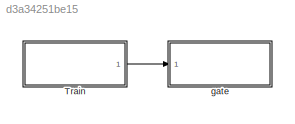
MODEL slx_d3a34251be15
KIND model
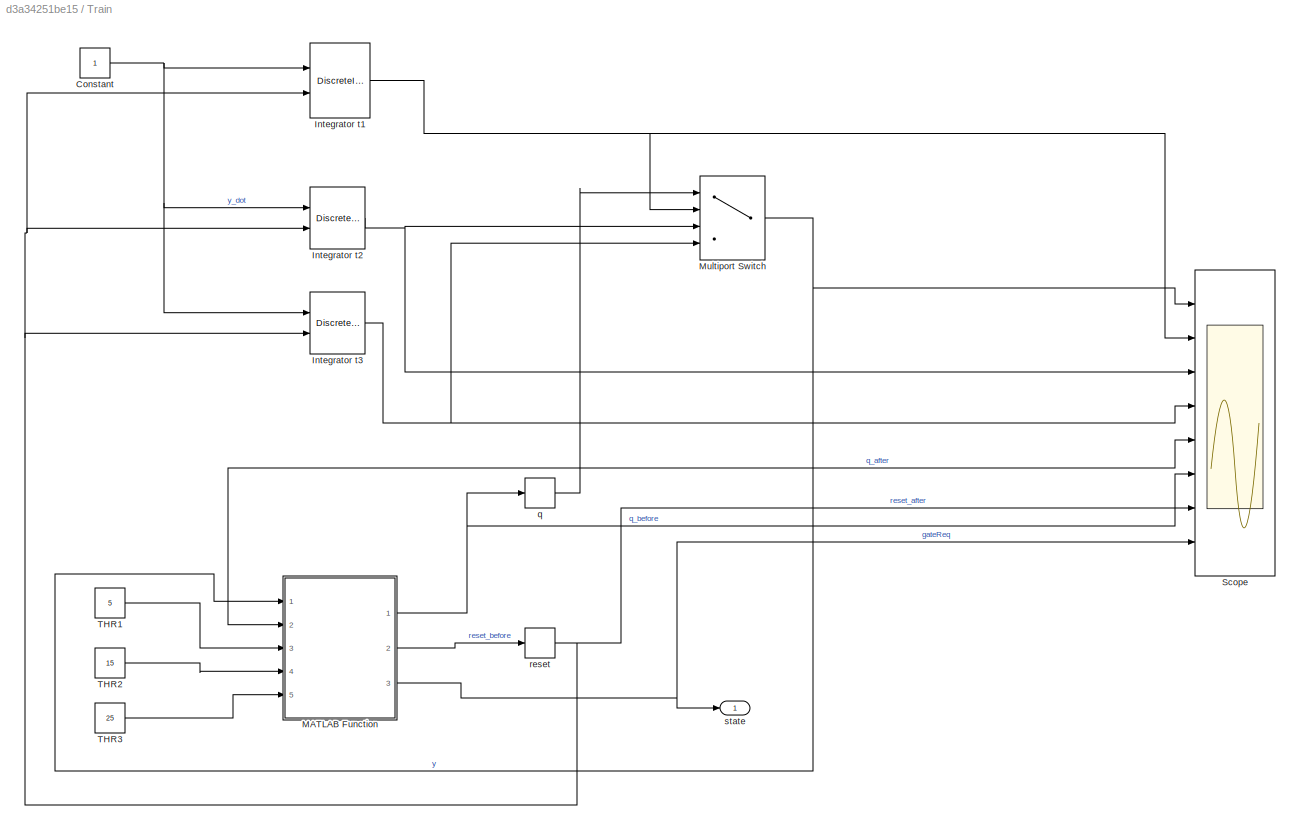
BLOCK [SubSystem] Train
  Ports = [0, 1]
  RequestExecContextInheritance = off
BLOCK [Constant] Train/Constant
BLOCK [DiscreteIntegrator] Train/Integrator t1
  ExternalReset = either
  InitialConditionSetting = State (most efficient)
  Ports = [2, 1]
  SampleTime = -1
BLOCK [DiscreteIntegrator] Train/Integrator t2
  ExternalReset = either
  InitialCondition = 5
  InitialConditionSetting = State (most efficient)
  Ports = [2, 1]
  SampleTime = -1
BLOCK [DiscreteIntegrator] Train/Integrator t3
  ExternalReset = either
  InitialCondition = 15
  InitialConditionSetting = State (most efficient)
  Ports = [2, 1]
  SampleTime = -1
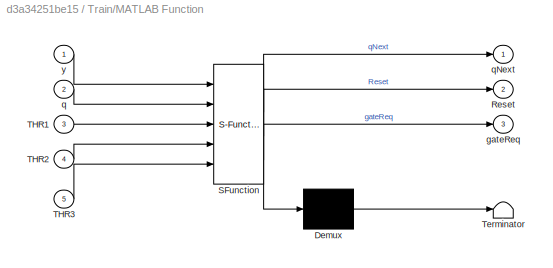
BLOCK [SubSystem] Train/MATLAB Function
  ErrorFcn = Stateflow.Translate.translate
  PermitHierarchicalResolution = ExplicitOnly
  Ports = [5, 3]
  Priority = 1
  RequestExecContextInheritance = off
  SFBlockType = MATLAB Function
  TreatAsAtomicUnit = on
BLOCK [Demux] Train/MATLAB Function/ Demux 
  Outputs = 1
  Ports = [1, 1]
BLOCK [S-Function] Train/MATLAB Function/ SFunction 
  EnableBusSupport = on
  FunctionName = sf_sfun
  PortCounts = [5 4]
  Ports = [5, 4]
  Tag = Stateflow S-Function trainGate 2
BLOCK [Terminator] Train/MATLAB Function/ Terminator 
BLOCK [Outport] Train/MATLAB Function/Reset
  IconDisplay = Port number
  Port = 2
BLOCK [Inport] Train/MATLAB Function/THR1
  IconDisplay = Port number
  Port = 3
BLOCK [Inport] Train/MATLAB Function/THR2
  IconDisplay = Port number
  Port = 4
BLOCK [Inport] Train/MATLAB Function/THR3
  IconDisplay = Port number
  Port = 5
BLOCK [Outport] Train/MATLAB Function/gateReq
  IconDisplay = Port number
  Port = 3
BLOCK [Inport] Train/MATLAB Function/q
  IconDisplay = Port number
  Port = 2
BLOCK [Outport] Train/MATLAB Function/qNext
  IconDisplay = Port number
BLOCK [Inport] Train/MATLAB Function/y
  IconDisplay = Port number
BLOCK [MultiPortSwitch] Train/Multiport Switch
  InputSameDT = off
  Ports = [4, 1]
  SaturateOnIntegerOverflow = off
BLOCK [Scope] Train/Scope
  Floating = off
  LimitDataPoints = off
  NumInputPorts = 8
  Ports = [8]
  ShowLegends = on
  TickLabels = on
  YMax = 40~20~20~30~3~3~1~1
  YMin = 0~0~0~10~1~1~0~-1
  ZoomMode = xonly
BLOCK [Constant] Train/THR1
  Value = 5
BLOCK [Constant] Train/THR2
  Value = 15
BLOCK [Constant] Train/THR3
  Value = 25
BLOCK [Memory] Train/q
  LinearizeMemory = on
  X0 = 1
BLOCK [Memory] Train/reset
  LinearizeMemory = on
  X0 = 1
BLOCK [Outport] Train/state
  IconDisplay = Port number
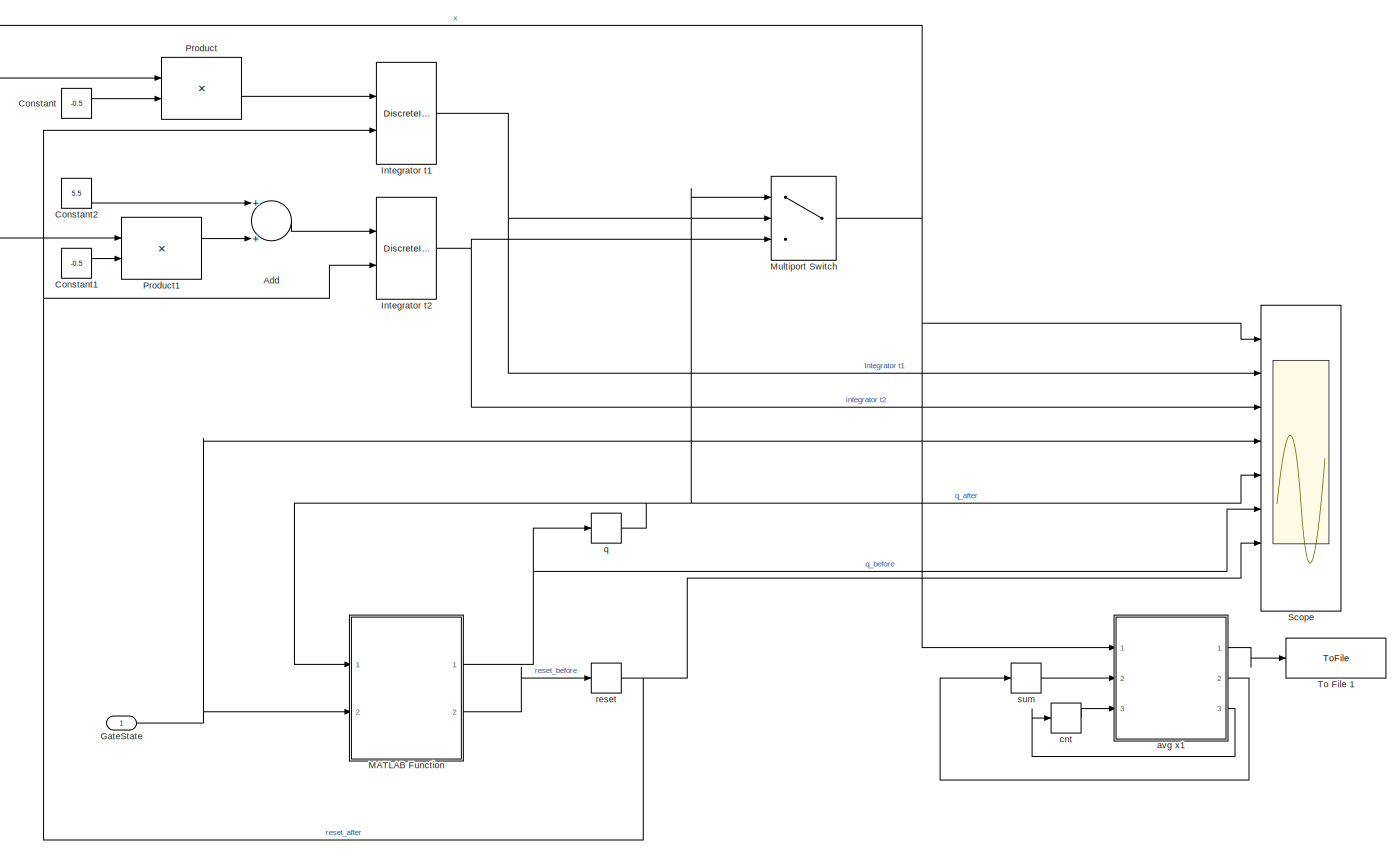
[diagram: gate - part 1/1, most of the canvas]
BLOCK [SubSystem] gate
  Ports = [1]
  RequestExecContextInheritance = off
BLOCK [Sum] gate/Add
  InputSameDT = off
  OutDataTypeStr = Inherit: Inherit via internal rule
  Ports = [2, 1]
  SaturateOnIntegerOverflow = off
BLOCK [Constant] gate/Constant
  Value = -0.5
BLOCK [Constant] gate/Constant1
  Value = -0.5
BLOCK [Constant] gate/Constant2
  Value = 5.5
BLOCK [Inport] gate/GateState
  IconDisplay = Port number
BLOCK [DiscreteIntegrator] gate/Integrator t1
  ExternalReset = either
  InitialCondition = 10
  InitialConditionSetting = State (most efficient)
  Ports = [2, 1]
  SampleTime = -1
BLOCK [DiscreteIntegrator] gate/Integrator t2
  ExternalReset = either
  InitialCondition = 1
  InitialConditionSetting = State (most efficient)
  Ports = [2, 1]
  SampleTime = -1
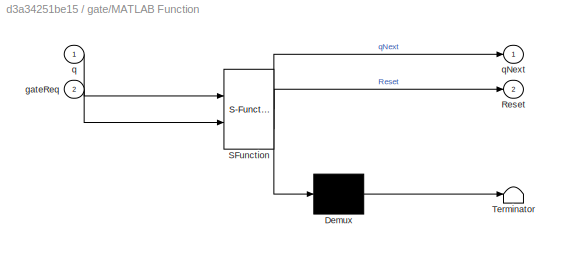
BLOCK [SubSystem] gate/MATLAB Function
  ErrorFcn = Stateflow.Translate.translate
  PermitHierarchicalResolution = ExplicitOnly
  Ports = [2, 2]
  Priority = 1
  RequestExecContextInheritance = off
  SFBlockType = MATLAB Function
  TreatAsAtomicUnit = on
BLOCK [Demux] gate/MATLAB Function/ Demux 
  Outputs = 1
  Ports = [1, 1]
BLOCK [S-Function] gate/MATLAB Function/ SFunction 
  EnableBusSupport = on
  FunctionName = sf_sfun
  PortCounts = [2 3]
  Ports = [2, 3]
  Tag = Stateflow S-Function trainGate 1
BLOCK [Terminator] gate/MATLAB Function/ Terminator 
BLOCK [Outport] gate/MATLAB Function/Reset
  IconDisplay = Port number
  Port = 2
BLOCK [Inport] gate/MATLAB Function/gateReq
  IconDisplay = Port number
  Port = 2
BLOCK [Inport] gate/MATLAB Function/q
  IconDisplay = Port number
BLOCK [Outport] gate/MATLAB Function/qNext
  IconDisplay = Port number
BLOCK [MultiPortSwitch] gate/Multiport Switch
  InputSameDT = off
  Inputs = 2
  Ports = [3, 1]
  SaturateOnIntegerOverflow = off
BLOCK [Product] gate/Product
  InputSameDT = off
  OutDataTypeStr = Inherit: Inherit via internal rule
  Ports = [2, 1]
  RndMeth = Floor
  SaturateOnIntegerOverflow = off
BLOCK [Product] gate/Product1
  InputSameDT = off
  OutDataTypeStr = Inherit: Inherit via internal rule
  Ports = [2, 1]
  RndMeth = Floor
  SaturateOnIntegerOverflow = off
BLOCK [Scope] gate/Scope
  Floating = off
  LegendLocations = 0.85236     0.93279    0.080392    0.020612\n0.77535     0.81129     0.15074    0.020612\n0.77622     0.68978     0.14994    0.020612\n0.78839     0.56828     0.13795    0.020612\n0.81122     0.44677     0.11797    0.020612\n0.79809     0.32527     0.12997    0.020612\n0.78498     0.20484     0.14194    0.020612\n0.78846    0.083331     0.13876    0.020612
  LimitDataPoints = off
  NumInputPorts = 8
  Ports = [8]
  ShowLegends = on
  TickLabels = on
  YMax = 20~50~100~1~2~2~1~1
  YMin = 0~-50~0~-1~1~1~0~-1
  ZoomMode = xonly
BLOCK [ToFile] gate/To File 1
  Decimation = 10000000
  Filename = xOutput.mat
  Ports = [1]
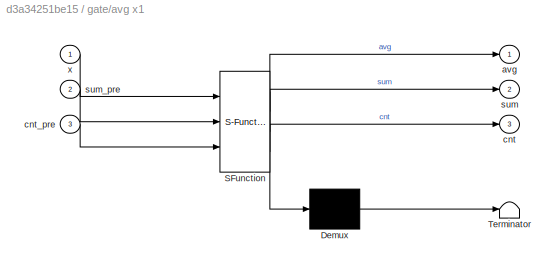
BLOCK [SubSystem] gate/avg x1
  ErrorFcn = Stateflow.Translate.translate
  PermitHierarchicalResolution = ExplicitOnly
  Ports = [3, 3]
  Priority = 4
  RequestExecContextInheritance = off
  SFBlockType = MATLAB Function
  TreatAsAtomicUnit = on
BLOCK [Demux] gate/avg x1/ Demux 
  Outputs = 1
  Ports = [1, 1]
BLOCK [S-Function] gate/avg x1/ SFunction 
  EnableBusSupport = on
  FunctionName = sf_sfun
  PortCounts = [3 4]
  Ports = [3, 4]
  Tag = Stateflow S-Function trainGate 4
BLOCK [Terminator] gate/avg x1/ Terminator 
BLOCK [Outport] gate/avg x1/avg
  IconDisplay = Port number
BLOCK [Outport] gate/avg x1/cnt
  IconDisplay = Port number
  Port = 3
BLOCK [Inport] gate/avg x1/cnt_pre
  IconDisplay = Port number
  Port = 3
BLOCK [Outport] gate/avg x1/sum
  IconDisplay = Port number
  Port = 2
BLOCK [Inport] gate/avg x1/sum_pre
  IconDisplay = Port number
  Port = 2
BLOCK [Inport] gate/avg x1/x
  IconDisplay = Port number
BLOCK [Memory] gate/cnt
BLOCK [Memory] gate/q
  LinearizeMemory = on
  X0 = 1
BLOCK [Memory] gate/reset
  LinearizeMemory = on
BLOCK [Memory] gate/sum
NET Train/Constant:1 -> Train/Integrator t1:1, Train/Integrator t2:1, Train/Integrator t3:1
NET Train/Integrator t1:1 -> Train/Multiport Switch:2, Train/Scope:2
NET Train/Integrator t2:1 -> Train/Multiport Switch:3, Train/Scope:3
NET Train/Integrator t3:1 -> Train/Multiport Switch:4, Train/Scope:4
NET Train/MATLAB Function:1 -> Train/Scope:6, Train/q:1
LINE Train/MATLAB Function:2 -> Train/reset:1
NET Train/MATLAB Function:3 -> Train/Scope:8, Train/state:1
NET Train/Multiport Switch:1 -> Train/MATLAB Function:1, Train/Scope:1
LINE Train/THR1:1 -> Train/MATLAB Function:3
LINE Train/THR2:1 -> Train/MATLAB Function:4
LINE Train/THR3:1 -> Train/MATLAB Function:5
NET Train/q:1 -> Train/MATLAB Function:2, Train/Multiport Switch:1, Train/Scope:5
NET Train/reset:1 -> Train/Integrator t1:2, Train/Integrator t2:2, Train/Integrator t3:2, Train/Scope:7
LINE Train:1 -> gate:1
LINE gate/Add:1 -> gate/Integrator t2:1
LINE gate/Constant1:1 -> gate/Product1:2
LINE gate/Constant2:1 -> gate/Add:1
LINE gate/Constant:1 -> gate/Product:2
NET gate/GateState:1 -> gate/MATLAB Function:2, gate/Scope:4
NET gate/Integrator t1:1 -> gate/Multiport Switch:2, gate/Scope:2
NET gate/Integrator t2:1 -> gate/Multiport Switch:3, gate/Scope:3
NET gate/MATLAB Function:1 -> gate/Scope:6, gate/q:1
LINE gate/MATLAB Function:2 -> gate/reset:1
NET gate/Multiport Switch:1 -> gate/Product1:1, gate/Product:1, gate/Scope:1, gate/avg x1:1
LINE gate/Product1:1 -> gate/Add:2
LINE gate/Product:1 -> gate/Integrator t1:1
LINE gate/avg x1:1 -> gate/To File 1:1
LINE gate/avg x1:2 -> gate/sum:1
LINE gate/avg x1:3 -> gate/cnt:1
LINE gate/cnt:1 -> gate/avg x1:3
NET gate/q:1 -> gate/MATLAB Function:1, gate/Multiport Switch:1, gate/Scope:5
NET gate/reset:1 -> gate/Integrator t1:2, gate/Integrator t2:2, gate/Scope:7
LINE gate/sum:1 -> gate/avg x1:2
note: NET lines group one-source signal fan-out (src -> all destinations, sorted); 1:1 wires keep LINE
CHART gate/MATLAB Function states=1 transitions=1
  STATE_LABEL 'eML_blk_kernel()'
  STATE_LABEL 'SCRIPT:\nfunction [qNext,Reset] = phi(q, gateReq)\n%#codegen\nif q==1 && gateReq~=1\n    qNext=1;\n    Reset=0;\nelseif q==1 && gateReq==1\n    qNext=2;\n    Reset=1;\nelseif q==2 && gateReq~=-1\n    qNext=2;\n    Reset=0;\nelseif q==2 && gateReq==-1\n    qNext=1;\n    Reset=1;\nelse\n    qNext=-1; %this should never execute\n    Reset=-1; %this should never execute\nend\n'
CHART Train/MATLAB Function states=1 transitions=1
  STATE_LABEL 'eML_blk_kernel()'
  STATE_LABEL 'SCRIPT:\nfunction [qNext,Reset,gateReq] = phi(y,q, THR1, THR2, THR3)\n%#codegen\nif q==1 && y < THR1\n    qNext=1;\n    Reset=0;\n    gateReq=0;\nelseif q==1 && y>=THR1\n    qNext=2;\n    Reset=1;\n    gateReq=1;\nelseif q==2 && y<THR2\n    qNext=2;\n    Reset=0;\n    gateReq=0;\nelseif q==2 && y>=THR2\n    qNext=3;\n    Reset=1;\n    gateReq=-1;\nelseif q==3 && y<THR3\n    qNext=3;\n    Reset=0;\n    gateReq=0;\nelseif...<+164ch>'
CHART gate/avg x1 states=1 transitions=1
  STATE_LABEL 'eML_blk_kernel()'
  STATE_LABEL 'SCRIPT:\nfunction [avg, sum,cnt] = fcn(x,  sum_pre, cnt_pre)\n%#codegen\n\ncnt=cnt_pre+1;\nsum=sum_pre+x;\navg=sum/cnt;\n'
